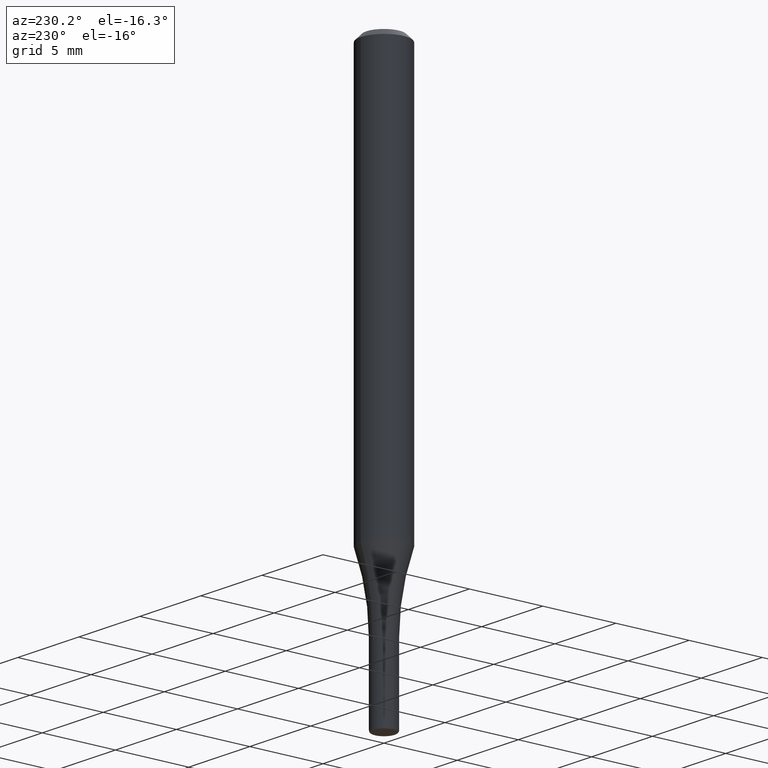
[diagram: clean part render]
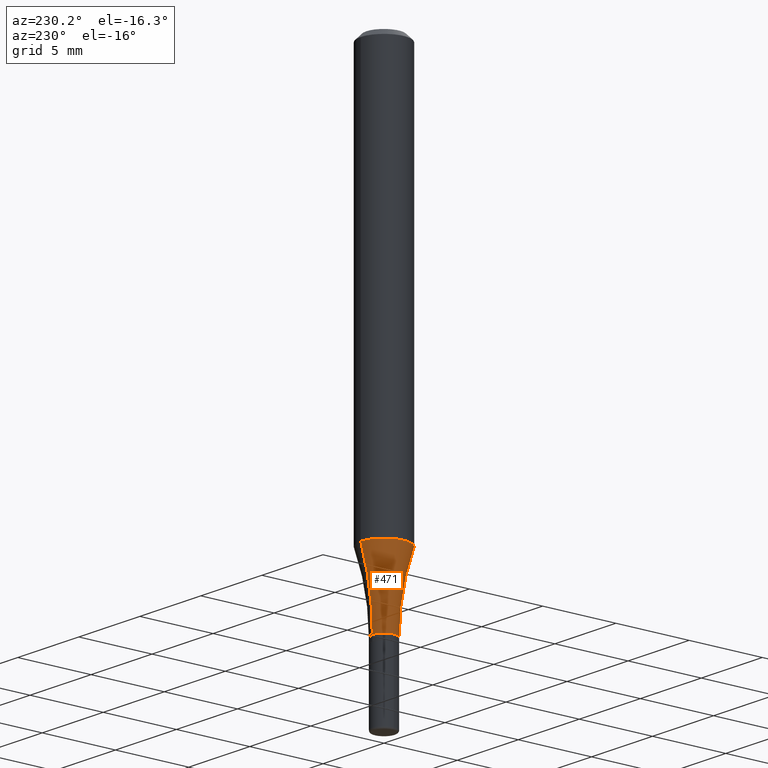
[diagram: same view with one face highlighted and labeled with its STEP entity id]
A machine part, auxiliary view. The second image highlights one B-rep face of the part: STEP entity #471.
In plain terms, the highlighted toroidal blend (fillet) surface has major radius 16.6687 mm and minor (blend) radius 15.875 mm.
Its self-contained STEP definition (entity closure, byte-faithful):
#14 = CARTESIAN_POINT ( 'NONE',  ( 2.685005130172230047E-29, -3.846712573099973362E-15, -1.099843812550049149 ) ) ;
#28 = CARTESIAN_POINT ( 'NONE',  ( 3.330669073875756569E-16, 0.03124999999999531625, -1.294999999999999707 ) ) ;
#34 = VERTEX_POINT ( 'NONE', #130 ) ;
#44 = ORIENTED_EDGE ( 'NONE', *, *, #242, .F. ) ;
#45 = CARTESIAN_POINT ( 'NONE',  ( -2.182175836776631463E-16, -0.03125000000000437150, -1.294999999999999707 ) ) ;
#69 = VERTEX_POINT ( 'NONE', #28 ) ;
#99 = AXIS2_PLACEMENT_3D ( 'NONE', #199, #158, #161 ) ;
#110 = CARTESIAN_POINT ( 'NONE',  ( -4.582569257231578608E-15, -0.6562500000000043299, -1.294999999999997486 ) ) ;
#113 = AXIS2_PLACEMENT_3D ( 'NONE', #144, #273, #302 ) ;
#115 = EDGE_CURVE ( 'NONE', #69, #512, #366, .T. ) ;
#122 = AXIS2_PLACEMENT_3D ( 'NONE', #14, #487, #212 ) ;
#130 = CARTESIAN_POINT ( 'NONE',  ( 4.440892098500899305E-16, 0.06249999999999618361, -1.099843812550049371 ) ) ;
#143 = ORIENTED_EDGE ( 'NONE', *, *, #168, .F. ) ;
#144 = CARTESIAN_POINT ( 'NONE',  ( 4.662936703425687446E-15, 0.6562499999999953371, -1.295000000000001927 ) ) ;
#158 = DIRECTION ( 'NONE',  ( -2.441260385824143346E-29, 3.497508036328499615E-15, 1.000000000000000000 ) ) ;
#161 = DIRECTION ( 'NONE',  ( -6.982962677686266711E-15, -1.000000000000000000, 3.497508036328499615E-15 ) ) ;
#168 = EDGE_CURVE ( 'NONE', #284, #512, #205, .T. ) ;
#170 = EDGE_CURVE ( 'NONE', #34, #69, #340, .T. ) ;
#199 = CARTESIAN_POINT ( 'NONE',  ( 3.166882104009751018E-29, -4.521468333801872526E-15, -1.294999999999999707 ) ) ;
#205 = CIRCLE ( 'NONE', #316, 0.6249999999999998890 ) ;
#212 = DIRECTION ( 'NONE',  ( -6.982962677686265922E-15, -1.000000000000000000, 4.370956789862819572E-15 ) ) ;
#242 = EDGE_CURVE ( 'NONE', #34, #284, #353, .T. ) ;
#250 = EDGE_LOOP ( 'NONE', ( #44, #281, #431, #143 ) ) ;
#273 = DIRECTION ( 'NONE',  ( 1.000000000000000000, -7.105427357601001070E-15, 4.926389314299930769E-29 ) ) ;
#281 = ORIENTED_EDGE ( 'NONE', *, *, #170, .T. ) ;
#284 = VERTEX_POINT ( 'NONE', #291 ) ;
#291 = CARTESIAN_POINT ( 'NONE',  ( -4.364351673553650947E-16, -0.06250000000000388578, -1.099843812550049149 ) ) ;
#302 = DIRECTION ( 'NONE',  ( 7.105427357601000281E-15, 1.000000000000000000, 0.000000000000000000 ) ) ;
#316 = AXIS2_PLACEMENT_3D ( 'NONE', #110, #345, #514 ) ;
#332 = AXIS2_PLACEMENT_3D ( 'NONE', #341, #348, #508 ) ;
#340 = CIRCLE ( 'NONE', #113, 0.6250000000000001110 ) ;
#341 = CARTESIAN_POINT ( 'NONE',  ( 3.161432199642265108E-29, -4.529272907045406483E-15, -1.294999999999999707 ) ) ;
#345 = DIRECTION ( 'NONE',  ( -1.000000000000000000, 6.982962677686265922E-15, -4.883557194083112340E-29 ) ) ;
#348 = DIRECTION ( 'NONE',  ( -2.441260385824143346E-29, 3.497508036328499615E-15, 1.000000000000000000 ) ) ;
#353 = CIRCLE ( 'NONE', #122, 0.06250000000000002776 ) ;
#354 = TOROIDAL_SURFACE ( 'NONE', #99, 0.6562499999999998890, 0.6250000000000000000 ) ;
#366 = CIRCLE ( 'NONE', #332, 0.03124999999999984734 ) ;
#431 = ORIENTED_EDGE ( 'NONE', *, *, #115, .T. ) ;
#447 = FACE_OUTER_BOUND ( 'NONE', #250, .T. ) ;
#471 = ADVANCED_FACE ( 'NONE', ( #447 ), #354, .F. ) ;
#487 = DIRECTION ( 'NONE',  ( -2.441260385824143346E-29, 3.497508036328499615E-15, 1.000000000000000000 ) ) ;
#508 = DIRECTION ( 'NONE',  ( -6.982962677686265922E-15, -1.000000000000000000, 0.000000000000000000 ) ) ;
#512 = VERTEX_POINT ( 'NONE', #45 ) ;
#514 = DIRECTION ( 'NONE',  ( -6.982962677686266711E-15, -1.000000000000000000, 0.000000000000000000 ) ) ;